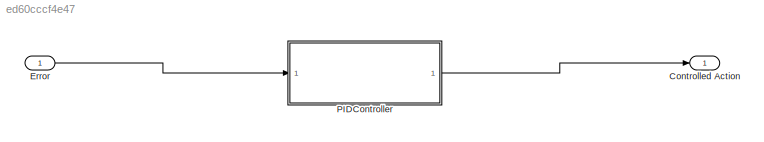
MODEL slx_ed60cccf4e47
KIND model
CONFIG AbsTol = auto
CONFIG EnableMultiTasking = off
CONFIG FixedStep = auto
CONFIG MaxStep = auto
CONFIG MinStep = auto
CONFIG RelTol = 1e-3
CONFIG SampleTimeConstraint = Unconstrained
CONFIG Solver = VariableStepAuto
CONFIG SolverName = VariableStepAuto
CONFIG StartTime = 0.0
CONFIG StopTime = 10.0
BLOCK [Outport] Controlled Action
BLOCK [Inport] Error
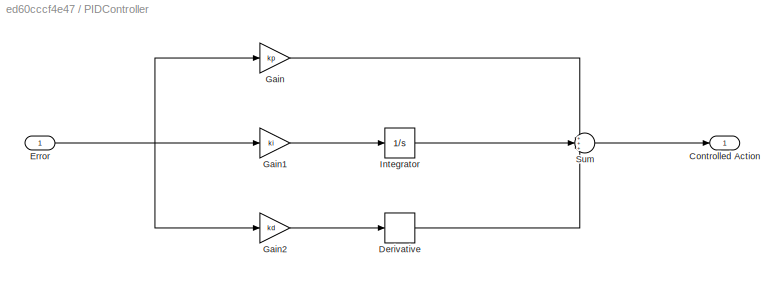
BLOCK [SubSystem] PIDController
  Ports = [1, 1]
  RequestExecContextInheritance = off
BLOCK [Outport] PIDController/Controlled Action
BLOCK [Derivative] PIDController/Derivative
BLOCK [Inport] PIDController/Error
BLOCK [Gain] PIDController/Gain
  Gain = kp
BLOCK [Gain] PIDController/Gain1
  Gain = ki
BLOCK [Gain] PIDController/Gain2
  Gain = kd
BLOCK [Integrator] PIDController/Integrator
  Ports = [1, 1]
BLOCK [Sum] PIDController/Sum
  Inputs = +++
  Ports = [3, 1]
LINE Error:1 -> PIDController:1
LINE PIDController/Derivative:1 -> PIDController/Sum:3
NET PIDController/Error:1 -> PIDController/Gain1:1, PIDController/Gain2:1, PIDController/Gain:1
LINE PIDController/Gain1:1 -> PIDController/Integrator:1
LINE PIDController/Gain2:1 -> PIDController/Derivative:1
LINE PIDController/Gain:1 -> PIDController/Sum:1
LINE PIDController/Integrator:1 -> PIDController/Sum:2
LINE PIDController/Sum:1 -> PIDController/Controlled Action:1
LINE PIDController:1 -> Controlled Action:1
note: NET lines group one-source signal fan-out (src -> all destinations, sorted); 1:1 wires keep LINE
